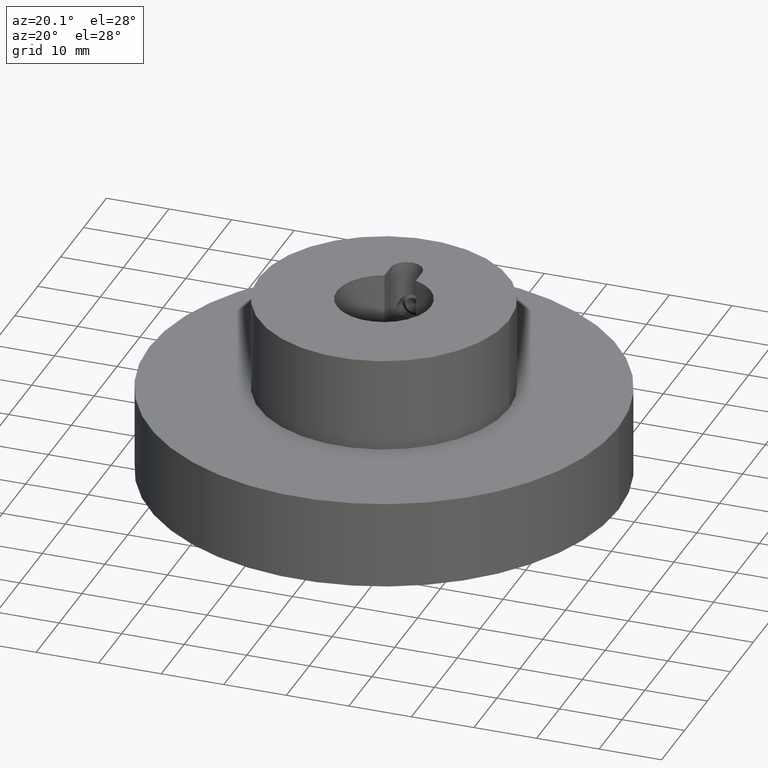
[diagram: clean part render]
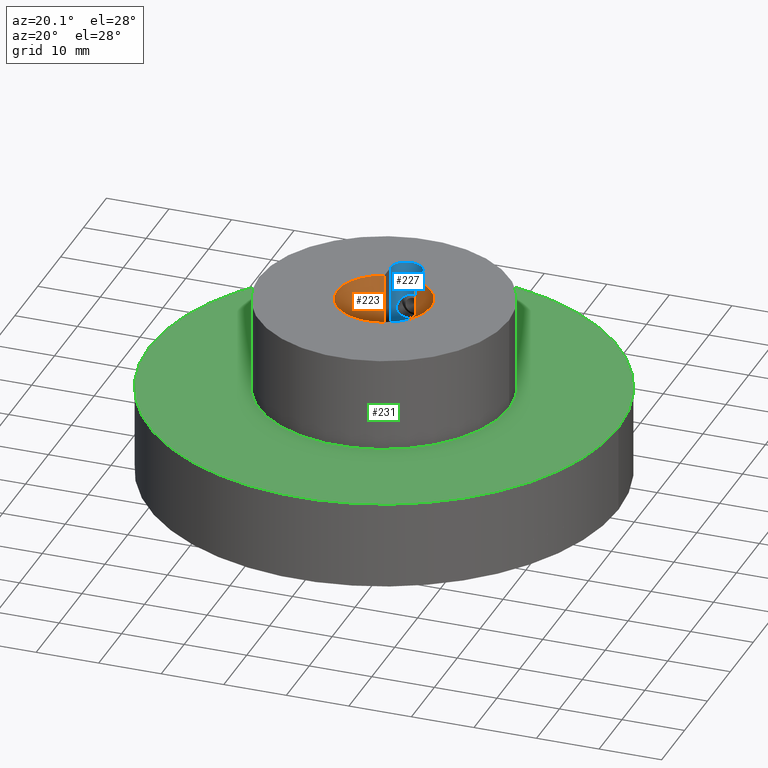
[diagram: same view with three faces highlighted in distinct colors, each labeled with its STEP entity id]
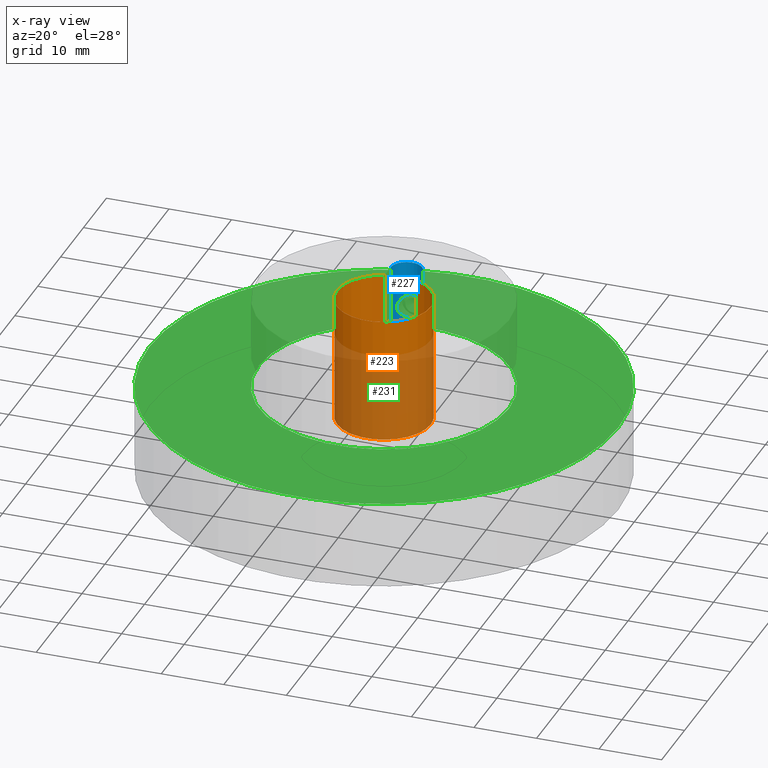
[diagram: x-ray of the same camera — body ghosted, the three highlighted faces saturated]
A machine part, auxiliary view with three faces highlighted in distinct colors.
The next image is the same camera in x-ray (body ghosted, the three faces saturated) — at least one of them is partly hidden behind the body in this view.
Their STEP definitions:

[orange] entity #223 — the highlighted cylindrical surface (partial cylindrical patch) has radius 7.5 mm, axis along (-0, -0, -1).
#223 = ADVANCED_FACE( '', ( #267 ), #268, .F. );
#267 = FACE_OUTER_BOUND( '', #339, .T. );
#268 = CYLINDRICAL_SURFACE( '', #340, 7.50000000000000 );
#339 = EDGE_LOOP( '', ( #431, #432, #433, #434 ) );
#340 = AXIS2_PLACEMENT_3D( '', #435, #436, #437 );
#431 = ORIENTED_EDGE( '', *, *, #571, .F. );
#432 = ORIENTED_EDGE( '', *, *, #577, .F. );
#433 = ORIENTED_EDGE( '', *, *, #578, .T. );
#434 = ORIENTED_EDGE( '', *, *, #574, .T. );
#435 = CARTESIAN_POINT( '', ( 0.000000000000000, 0.000000000000000, -57.0970198930440 ) );
#436 = DIRECTION( '', ( -0.000000000000000, -0.000000000000000, -1.00000000000000 ) );
#437 = DIRECTION( '', ( -1.00000000000000, 6.12303176911189E-017, 0.000000000000000 ) );
#571 = EDGE_CURVE( '', #624, #619, #626, .F. );
#574 = EDGE_CURVE( '', #631, #619, #632, .T. );
#577 = EDGE_CURVE( '', #636, #624, #637, .T. );
#578 = EDGE_CURVE( '', #636, #631, #638, .F. );
#619 = VERTEX_POINT( '', #699 );
#624 = VERTEX_POINT( '', #705 );
#626 = CIRCLE( '', #708, 7.50000000000000 );
#631 = VERTEX_POINT( '', #713 );
#632 = LINE( '', #714, #715 );
#636 = VERTEX_POINT( '', #721 );
#637 = LINE( '', #722, #723 );
#638 = CIRCLE( '', #724, 7.50000000000000 );
#699 = CARTESIAN_POINT( '', ( -2.50000000000001, 7.07106781186547, 29.0000000000000 ) );
#705 = CARTESIAN_POINT( '', ( 2.50000000000000, 7.07106781186548, 29.0000000000000 ) );
#708 = AXIS2_PLACEMENT_3D( '', #953, #954, #955 );
#713 = CARTESIAN_POINT( '', ( -2.50000000000000, 7.07106781186547, 9.00000000000000 ) );
#714 = CARTESIAN_POINT( '', ( -2.50000000000001, 7.07106781186547, -57.0970198930440 ) );
#715 = VECTOR( '', #962, 1000.00000000000 );
#721 = CARTESIAN_POINT( '', ( 2.50000000000000, 7.07106781186548, 8.99999999999999 ) );
#722 = CARTESIAN_POINT( '', ( 2.50000000000000, 7.07106781186548, -57.0970198930440 ) );
#723 = VECTOR( '', #965, 1000.00000000000 );
#724 = AXIS2_PLACEMENT_3D( '', #966, #967, #968 );
#953 = CARTESIAN_POINT( '', ( 0.000000000000000, 0.000000000000000, 29.0000000000000 ) );
#954 = DIRECTION( '', ( 0.000000000000000, 0.000000000000000, 1.00000000000000 ) );
#955 = DIRECTION( '', ( 1.00000000000000, 0.000000000000000, -0.000000000000000 ) );
#962 = DIRECTION( '', ( 0.000000000000000, 0.000000000000000, 1.00000000000000 ) );
#965 = DIRECTION( '', ( 0.000000000000000, 0.000000000000000, 1.00000000000000 ) );
#966 = CARTESIAN_POINT( '', ( 0.000000000000000, 0.000000000000000, 8.99999999999999 ) );
#967 = DIRECTION( '', ( 0.000000000000000, 0.000000000000000, 1.00000000000000 ) );
#968 = DIRECTION( '', ( 1.00000000000000, 0.000000000000000, -0.000000000000000 ) );

[blue] entity #227 — the highlighted cylindrical surface (edge-blend (fillet) strip) has radius 2.5 mm, axis along (-0, -0, -1).
#227 = ADVANCED_FACE( '', ( #278, #279 ), #280, .F. );
#278 = FACE_BOUND( '', #350, .T. );
#279 = FACE_OUTER_BOUND( '', #351, .T. );
#280 = CYLINDRICAL_SURFACE( '', #352, 2.50000000000000 );
#350 = EDGE_LOOP( '', ( #456 ) );
#351 = EDGE_LOOP( '', ( #457, #458, #459, #460 ) );
#352 = AXIS2_PLACEMENT_3D( '', #461, #462, #463 );
#456 = ORIENTED_EDGE( '', *, *, #583, .F. );
#457 = ORIENTED_EDGE( '', *, *, #569, .F. );
#458 = ORIENTED_EDGE( '', *, *, #576, .F. );
#459 = ORIENTED_EDGE( '', *, *, #584, .T. );
#460 = ORIENTED_EDGE( '', *, *, #579, .T. );
#461 = CARTESIAN_POINT( '', ( 0.000000000000000, 9.80000000000000, -57.0970198930440 ) );
#462 = DIRECTION( '', ( -0.000000000000000, -0.000000000000000, -1.00000000000000 ) );
#463 = DIRECTION( '', ( -1.00000000000000, 6.12303176911189E-017, 0.000000000000000 ) );
#569 = EDGE_CURVE( '', #620, #622, #623, .F. );
#576 = EDGE_CURVE( '', #633, #620, #635, .T. );
#579 = EDGE_CURVE( '', #639, #622, #640, .T. );
#583 = EDGE_CURVE( '', #646, #646, #647, .T. );
#584 = EDGE_CURVE( '', #633, #639, #648, .F. );
#620 = VERTEX_POINT( '', #700 );
#622 = VERTEX_POINT( '', #703 );
#623 = CIRCLE( '', #704, 2.50000000000000 );
#633 = VERTEX_POINT( '', #716 );
#635 = LINE( '', #719, #720 );
#639 = VERTEX_POINT( '', #725 );
#640 = LINE( '', #726, #727 );
#646 = VERTEX_POINT( '', #787 );
#647 = B_SPLINE_CURVE_WITH_KNOTS( '', 3, ( #788, #789, #790, #791, #792, #793, #794, #795, #796, #797, #798, #799, #800, #801, #802, #803, #804, #805, #806, #807, #808, #809, #810, #811, #812, #813, #814, #815, #816, #817, #818, #819, #820, #821, #822, #823, #824, #825, #826, #827, #828, #829, #830, #831, #832, #833, #834, #835, #836, #837, #838, #839, #840, #841, #842, #843, #844, #845, #846, #847, #848, #849 ), .UNSPECIFIED., .T., .F., ( 2, 2, 2, 2, 2, 2, 2, 2, 2, 2, 2, 2, 2, 2, 2, 2, 2, 2, 2, 2, 2, 2, 2, 2, 2, 2, 2, 2, 2, 2, 2, 2, 2 ), ( -0.000439835752063653, 0.000000000000000, 0.000439835752063655, 0.000879671504127310, 0.00131950725619096, 0.00175934300825462, 0.00219917876031827, 0.00263901451238193, 0.00307885026444558, 0.00351868601650924, 0.00395852176857289, 0.00439835752063655, 0.00483819327270020, 0.00527802902476385, 0.00571786477682751, 0.00615770052889116, 0.00659753628095482, 0.00703737203301847, 0.00747720778508212, 0.00791704353714578, 0.00835687928920944, 0.00879671504127309, 0.00923655079333674, 0.00967638654540040, 0.0101162222974641, 0.0105560580495277, 0.0109958938015914, 0.0114357295536550, 0.0123154010577823, 0.0131950725619096, 0.0136349083139733, 0.0140747440660369, 0.0145145798181006 ), .UNSPECIFIED. );
#648 = CIRCLE( '', #850, 2.50000000000000 );
#700 = CARTESIAN_POINT( '', ( -2.50000000000000, 9.80000000000000, 29.0000000000000 ) );
#703 = CARTESIAN_POINT( '', ( 2.50000000000000, 9.80000000000000, 29.0000000000000 ) );
#704 = AXIS2_PLACEMENT_3D( '', #949, #950, #951 );
#716 = CARTESIAN_POINT( '', ( -2.50000000000000, 9.80000000000000, 8.99999999999999 ) );
#719 = CARTESIAN_POINT( '', ( -2.50000000000000, 9.80000000000000, -57.0970198930440 ) );
#720 = VECTOR( '', #964, 1000.00000000000 );
#725 = CARTESIAN_POINT( '', ( 2.50000000000000, 9.80000000000000, 9.00000000000000 ) );
#726 = CARTESIAN_POINT( '', ( 2.50000000000000, 9.80000000000000, -57.0970198930440 ) );
#727 = VECTOR( '', #969, 1000.00000000000 );
#787 = CARTESIAN_POINT( '', ( -2.10000000000000, 11.1564659966251, 21.5000000000000 ) );
#788 = CARTESIAN_POINT( '', ( -2.10000000000000, 11.1564659966251, 21.6491353751273 ) );
#789 = CARTESIAN_POINT( '', ( -2.10000000000000, 11.1564659966251, 21.3508646248727 ) );
#790 = CARTESIAN_POINT( '', ( -2.08435683647385, 11.1813439942753, 21.2071363169546 ) );
#791 = CARTESIAN_POINT( '', ( -2.02567398357489, 11.2660489638970, 20.9281980492600 ) );
#792 = CARTESIAN_POINT( '', ( -1.98420755713749, 11.3230290790015, 20.7996409061790 ) );
#793 = CARTESIAN_POINT( '', ( -1.88035503415051, 11.4495339192725, 20.5556232554514 ) );
#794 = CARTESIAN_POINT( '', ( -1.81749538399029, 11.5194987794126, 20.4401667616177 ) );
#795 = CARTESIAN_POINT( '', ( -1.67460472069960, 11.6589417830147, 20.2263301081456 ) );
#796 = CARTESIAN_POINT( '', ( -1.59413382323229, 11.7291431055400, 20.1268380029138 ) );
#797 = CARTESIAN_POINT( '', ( -1.41296240095105, 11.8655248779728, 19.9410343909779 ) );
#798 = CARTESIAN_POINT( '', ( -1.31142274166336, 11.9320857320491, 19.8543909373904 ) );
#799 = CARTESIAN_POINT( '', ( -1.09224697182010, 12.0522468178930, 19.7014296380613 ) );
#800 = CARTESIAN_POINT( '', ( -0.973998164272492, 12.1065258578225, 19.6342219890983 ) );
#801 = CARTESIAN_POINT( '', ( -0.716372262492361, 12.1990716409356, 19.5209571021572 ) );
#802 = CARTESIAN_POINT( '', ( -0.580723025178699, 12.2358598255287, 19.4767127575598 ) );
#803 = CARTESIAN_POINT( '', ( -0.297775850304754, 12.2863591584027, 19.4161909779519 ) );
#804 = CARTESIAN_POINT( '', ( -0.149130544067359, 12.2998292901256, 19.4002032260973 ) );
#805 = CARTESIAN_POINT( '', ( 0.143351047622136, 12.3001673696154, 19.3998007504021 ) );
#806 = CARTESIAN_POINT( '', ( 0.291525414577716, 12.2871279292922, 19.4152751166439 ) );
#807 = CARTESIAN_POINT( '', ( 0.575547400619077, 12.2371166557329, 19.4752012207951 ) );
#808 = CARTESIAN_POINT( '', ( 0.711482784659288, 12.2005370588994, 19.5191836778189 ) );
#809 = CARTESIAN_POINT( '', ( 0.969647184989728, 12.1083696109283, 19.6319460950692 ) );
#810 = CARTESIAN_POINT( '', ( 1.08855088552138, 12.0540835008847, 19.6991260345662 ) );
#811 = CARTESIAN_POINT( '', ( 1.30939659922934, 11.9333813548581, 19.8527080963979 ) );
#812 = CARTESIAN_POINT( '', ( 1.41070249210635, 11.8670605469818, 19.9390117352777 ) );
#813 = CARTESIAN_POINT( '', ( 1.59178449659479, 11.7310730028987, 20.1241409955099 ) );
#814 = CARTESIAN_POINT( '', ( 1.67262363220907, 11.6607616255679, 20.2236536169430 ) );
#815 = CARTESIAN_POINT( '', ( 1.81661334723600, 11.5204707462942, 20.4385642500786 ) );
#816 = CARTESIAN_POINT( '', ( 1.87941052860776, 11.4506102024750, 20.5537788810757 ) );
#817 = CARTESIAN_POINT( '', ( 1.98334119358747, 11.3241573689667, 20.7972368459011 ) );
#818 = CARTESIAN_POINT( '', ( 2.02555971576877, 11.2661966338486, 20.9280882559316 ) );
#819 = CARTESIAN_POINT( '', ( 2.08392701054680, 11.1819815288084, 21.2046638866273 ) );
#820 = CARTESIAN_POINT( '', ( 2.09994521950943, 11.1565508045034, 21.3522293212096 ) );
#821 = CARTESIAN_POINT( '', ( 2.10005449036125, 11.1563816379076, 21.6462095618084 ) );
#822 = CARTESIAN_POINT( '', ( 2.08418137990297, 11.1815856487421, 21.7934044353438 ) );
#823 = CARTESIAN_POINT( '', ( 2.02621795816969, 11.2652753035300, 22.0695076584247 ) );
#824 = CARTESIAN_POINT( '', ( 1.98467071707643, 11.3224512289360, 22.1992015872950 ) );
#825 = CARTESIAN_POINT( '', ( 1.88022552053495, 11.4497053044827, 22.4447500763829 ) );
#826 = CARTESIAN_POINT( '', ( 1.81843317881113, 11.5184973212353, 22.5582099839926 ) );
#827 = CARTESIAN_POINT( '', ( 1.67586675480427, 11.6577951687514, 22.7719977264778 ) );
#828 = CARTESIAN_POINT( '', ( 1.59448204355146, 11.7288919201027, 22.8728244040212 ) );
#829 = CARTESIAN_POINT( '', ( 1.41230746047255, 11.8660069370017, 23.0596177315540 ) );
#830 = CARTESIAN_POINT( '', ( 1.31290504535944, 11.9311224478553, 23.1443552208540 ) );
#831 = CARTESIAN_POINT( '', ( 1.09538028914764, 12.0506764689822, 23.2965983893533 ) );
#832 = CARTESIAN_POINT( '', ( 0.976157083536627, 12.1055952240470, 23.3646281688656 ) );
#833 = CARTESIAN_POINT( '', ( 0.719193293055664, 12.1982103736142, 23.4779994608415 ) );
#834 = CARTESIAN_POINT( '', ( 0.584328740520967, 12.2350386012317, 23.5223001336915 ) );
#835 = CARTESIAN_POINT( '', ( 0.300070780124672, 12.2861236078286, 23.5835295617396 ) );
#836 = CARTESIAN_POINT( '', ( 0.152511829660481, 12.2996325468522, 23.5995625552304 ) );
#837 = CARTESIAN_POINT( '', ( -0.140217382715913, 12.3003523377823, 23.6004194502756 ) );
#838 = CARTESIAN_POINT( '', ( -0.289271654484289, 12.2873772610672, 23.5850213495430 ) );
#839 = CARTESIAN_POINT( '', ( -0.572874017414444, 12.2377323661825, 23.5255388118497 ) );
#840 = CARTESIAN_POINT( '', ( -0.710196685114512, 12.2008960977363, 23.4812487329901 ) );
#841 = CARTESIAN_POINT( '', ( -1.09645892869372, 12.0632948178214, 23.3129206578810 ) );
#842 = CARTESIAN_POINT( '', ( -1.31877965124758, 11.9359215712357, 23.1546623093783 ) );
#843 = CARTESIAN_POINT( '', ( -1.68130946881144, 11.6640115871688, 22.7846344214238 ) );
#844 = CARTESIAN_POINT( '', ( -1.82696503828213, 11.5143572947435, 22.5687553316231 ) );
#845 = CARTESIAN_POINT( '', ( -1.98299577190399, 11.3246092335078, 22.2037311781536 ) );
#846 = CARTESIAN_POINT( '', ( -2.02541717780720, 11.2663940964346, 22.0723826618084 ) );
#847 = CARTESIAN_POINT( '', ( -2.08381057422884, 11.1821576903330, 21.7960914494332 ) );
#848 = CARTESIAN_POINT( '', ( -2.10000000000000, 11.1564659966251, 21.6491353751273 ) );
#849 = CARTESIAN_POINT( '', ( -2.10000000000000, 11.1564659966251, 21.3508646248727 ) );
#850 = AXIS2_PLACEMENT_3D( '', #974, #975, #976 );
#949 = CARTESIAN_POINT( '', ( 0.000000000000000, 9.80000000000000, 29.0000000000000 ) );
#950 = DIRECTION( '', ( 0.000000000000000, 0.000000000000000, 1.00000000000000 ) );
#951 = DIRECTION( '', ( 1.00000000000000, 0.000000000000000, -0.000000000000000 ) );
#964 = DIRECTION( '', ( 0.000000000000000, 0.000000000000000, 1.00000000000000 ) );
#969 = DIRECTION( '', ( 0.000000000000000, 0.000000000000000, 1.00000000000000 ) );
#974 = CARTESIAN_POINT( '', ( 0.000000000000000, 9.80000000000000, 8.99999999999999 ) );
#975 = DIRECTION( '', ( 0.000000000000000, 0.000000000000000, 1.00000000000000 ) );
#976 = DIRECTION( '', ( 1.00000000000000, 0.000000000000000, -0.000000000000000 ) );

[green] entity #231 — the highlighted planar face has unit normal (0, 0, 1).
#231 = ADVANCED_FACE( '', ( #290, #291 ), #292, .T. );
#290 = FACE_BOUND( '', #362, .T. );
#291 = FACE_OUTER_BOUND( '', #363, .T. );
#292 = PLANE( '', #364 );
#362 = EDGE_LOOP( '', ( #482 ) );
#363 = EDGE_LOOP( '', ( #483 ) );
#364 = AXIS2_PLACEMENT_3D( '', #484, #485, #486 );
#482 = ORIENTED_EDGE( '', *, *, #582, .F. );
#483 = ORIENTED_EDGE( '', *, *, #572, .T. );
#484 = CARTESIAN_POINT( '', ( 0.000000000000000, 0.000000000000000, 14.0000000000000 ) );
#485 = DIRECTION( '', ( 0.000000000000000, 0.000000000000000, 1.00000000000000 ) );
#486 = DIRECTION( '', ( 1.00000000000000, 0.000000000000000, 0.000000000000000 ) );
#572 = EDGE_CURVE( '', #627, #627, #628, .T. );
#582 = EDGE_CURVE( '', #644, #644, #645, .T. );
#627 = VERTEX_POINT( '', #709 );
#628 = CIRCLE( '', #710, 37.5000000000000 );
#644 = VERTEX_POINT( '', #785 );
#645 = CIRCLE( '', #786, 20.0000000000000 );
#709 = CARTESIAN_POINT( '', ( 37.5000000000000, 0.000000000000000, 14.0000000000000 ) );
#710 = AXIS2_PLACEMENT_3D( '', #956, #957, #958 );
#785 = CARTESIAN_POINT( '', ( 20.0000000000000, 0.000000000000000, 14.0000000000000 ) );
#786 = AXIS2_PLACEMENT_3D( '', #971, #972, #973 );
#956 = CARTESIAN_POINT( '', ( 0.000000000000000, 0.000000000000000, 14.0000000000000 ) );
#957 = DIRECTION( '', ( 0.000000000000000, 0.000000000000000, 1.00000000000000 ) );
#958 = DIRECTION( '', ( 1.00000000000000, 0.000000000000000, 0.000000000000000 ) );
#971 = CARTESIAN_POINT( '', ( 0.000000000000000, 0.000000000000000, 14.0000000000000 ) );
#972 = DIRECTION( '', ( 0.000000000000000, 0.000000000000000, 1.00000000000000 ) );
#973 = DIRECTION( '', ( 1.00000000000000, 0.000000000000000, 0.000000000000000 ) );